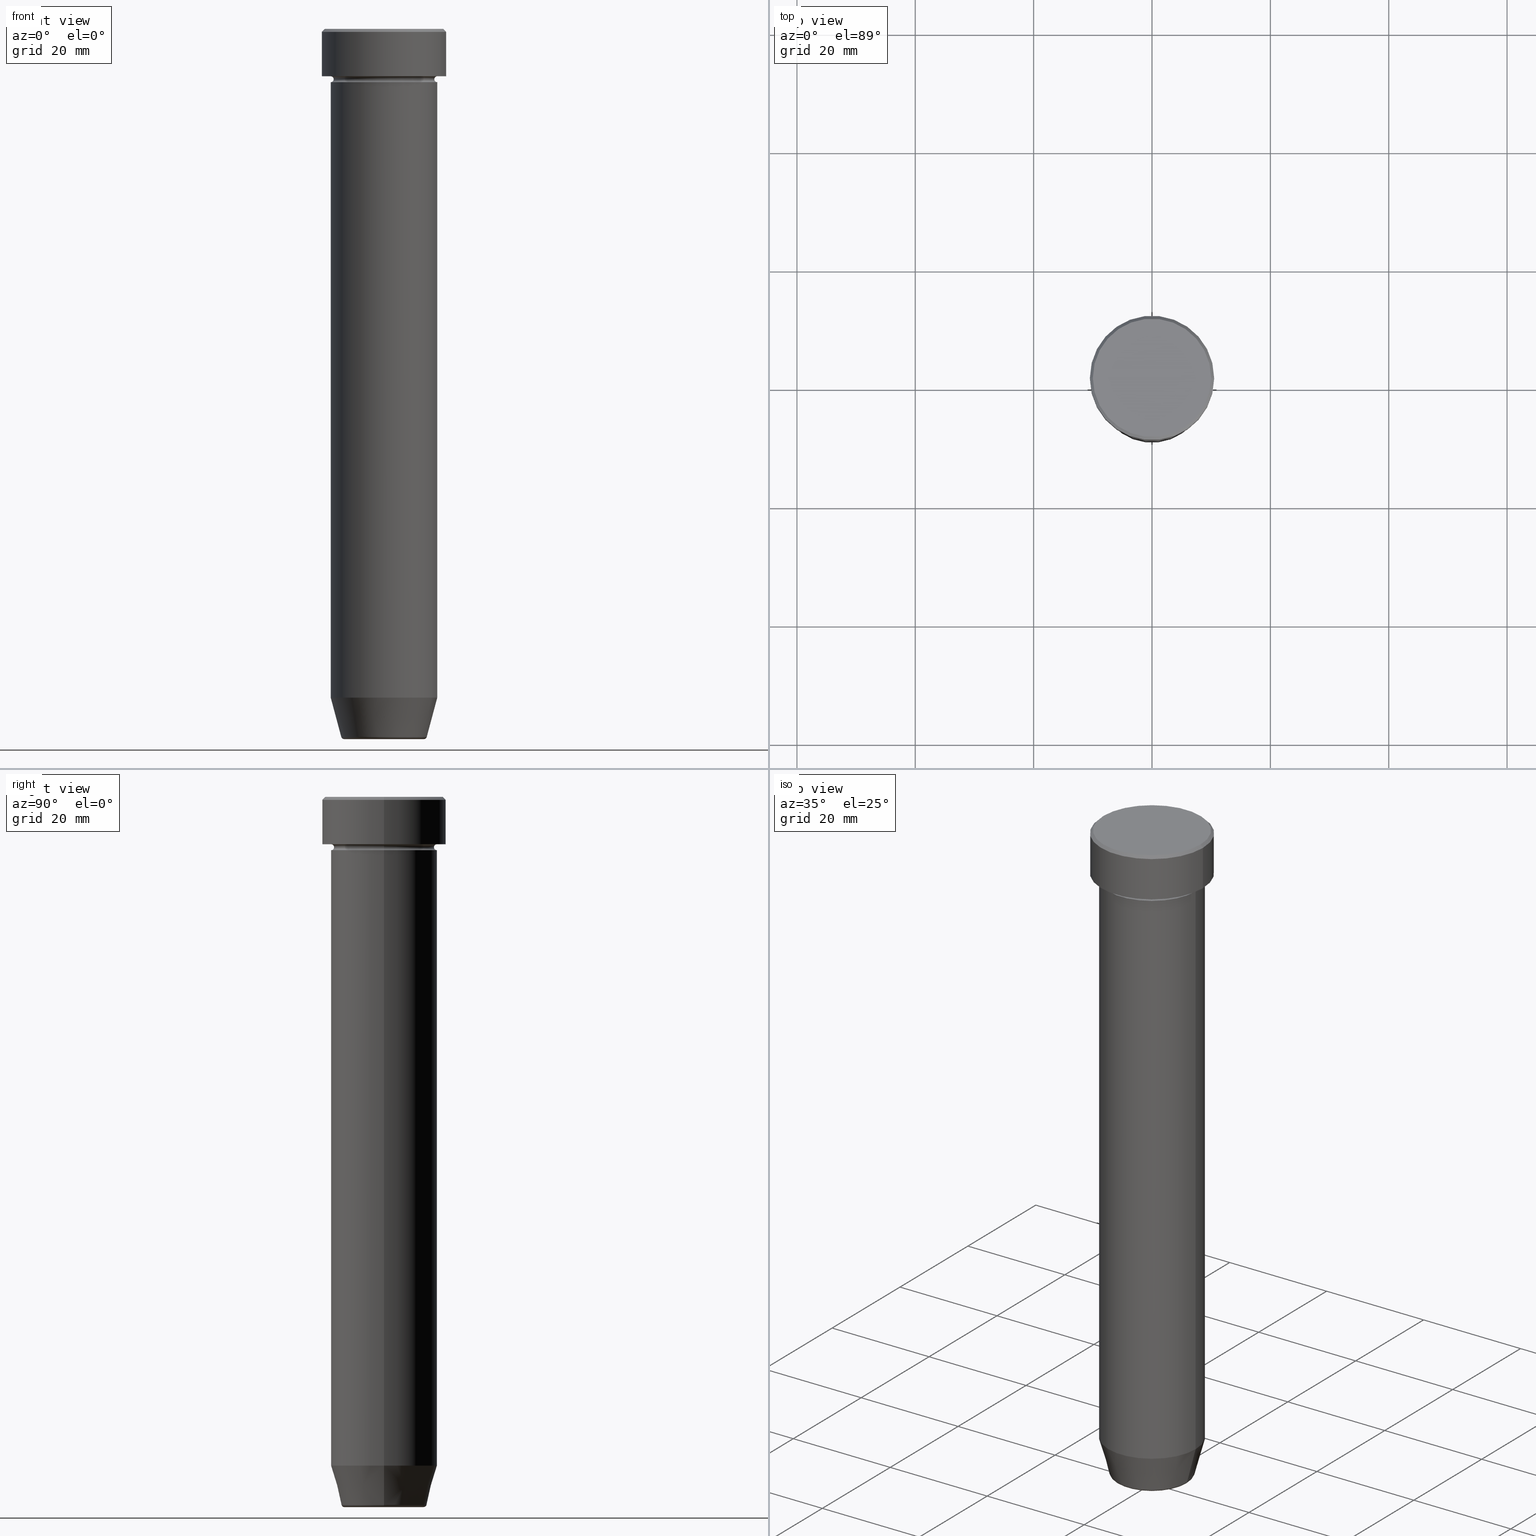
[diagram: canonical four-view strip — front | top / right | iso, engineering-drawing reading convention]
A machine part, canonical four-view strip (front | top / right | iso — engineering-drawing reading convention). The complete STEP part file that produces these views, byte-faithful:
ISO-10303-21;
HEADER;
FILE_DESCRIPTION (( 'STEP AP203' ),
    '1' );
FILE_NAME ('7e68.STEP',
    '2024-01-02T22:07:42',
    ( '' ),
    ( '' ),
    'SwSTEP 2.0',
    'SolidWorks 2019',
    '' );
FILE_SCHEMA (( 'CONFIG_CONTROL_DESIGN' ));
ENDSEC;

DATA;
#1 = CONICAL_SURFACE ( 'NONE', #540, 10.00000000000000178, 0.7853981633974447263 ) ;
#2 = CARTESIAN_POINT ( 'NONE',  ( -9.000000000000000000, 0.000000000000000000, -8.000000000000000000 ) ) ;
#3 = ADVANCED_BREP_SHAPE_REPRESENTATION ( '7e68', ( #64, #267, #308 ), #170 ) ;
#4 = EDGE_CURVE ( 'NONE', #443, #316, #352, .T. ) ;
#5 = EDGE_LOOP ( 'NONE', ( #189, #571, #19, #341 ) ) ;
#6 = DIRECTION ( 'NONE',  ( -0.000000000000000000, -0.000000000000000000, 1.000000000000000000 ) ) ;
#7 = VERTEX_POINT ( 'NONE', #73 ) ;
#8 = PRODUCT ( '7e68', '7e68', '', ( #129 ) ) ;
#9 = CARTESIAN_POINT ( 'NONE',  ( 0.000000000000000000, 0.000000000000000000, -8.500000000000000000 ) ) ;
#10 = CIRCLE ( 'NONE', #357, 9.000000000000000000 ) ;
#11 = EDGE_CURVE ( 'NONE', #596, #252, #169, .T. ) ;
#12 = ORGANIZATION ( 'NEUR�EN�', 'NEUR�EN�', '' ) ;
#13 = DIRECTION ( 'NONE',  ( 1.000000000000000000, 0.000000000000000000, 0.000000000000000000 ) ) ;
#14 = ORIENTED_EDGE ( 'NONE', *, *, #122, .T. ) ;
#15 = DIRECTION ( 'NONE',  ( 1.000000000000000000, 0.000000000000000000, 0.000000000000000000 ) ) ;
#16 = PLANE ( 'NONE',  #253 ) ;
#17 = APPROVAL_DATE_TIME ( #247, #404 ) ;
#18 = DIRECTION ( 'NONE',  ( 1.000000000000000000, 0.000000000000000000, 0.000000000000000000 ) ) ;
#19 = ORIENTED_EDGE ( 'NONE', *, *, #548, .T. ) ;
#20 = CIRCLE ( 'NONE', #99, 10.50000000000000000 ) ;
#21 = AXIS2_PLACEMENT_3D ( 'NONE', #202, #583, #525 ) ;
#22 = PLANE ( 'NONE',  #130 ) ;
#23 = ORIENTED_EDGE ( 'NONE', *, *, #492, .T. ) ;
#24 = ADVANCED_FACE ( 'NONE', ( #437 ), #344, .T. ) ;
#25 = CARTESIAN_POINT ( 'NONE',  ( 10.50000000000000000, 0.000000000000000000, 0.000000000000000000 ) ) ;
#26 = ORIENTED_EDGE ( 'NONE', *, *, #510, .F. ) ;
#27 = FACE_OUTER_BOUND ( 'NONE', #329, .T. ) ;
#28 = EDGE_LOOP ( 'NONE', ( #159, #103, #36, #398 ) ) ;
#29 = ADVANCED_FACE ( 'NONE', ( #584 ), #16, .F. ) ;
#30 = DATE_AND_TIME ( #591, #196 ) ;
#31 = AXIS2_PLACEMENT_3D ( 'NONE', #509, #87, #227 ) ;
#32 = CARTESIAN_POINT ( 'NONE',  ( 0.000000000000000000, 0.000000000000000000, -8.000000000000000000 ) ) ;
#33 = LOCAL_TIME ( 23, 7, 42.00000000000000000, #468 ) ;
#34 = FACE_OUTER_BOUND ( 'NONE', #537, .T. ) ;
#35 = CARTESIAN_POINT ( 'NONE',  ( -9.000000000000000000, 0.000000000000000000, -8.500000000000000000 ) ) ;
#36 = ORIENTED_EDGE ( 'NONE', *, *, #297, .T. ) ;
#37 = FACE_OUTER_BOUND ( 'NONE', #255, .T. ) ;
#38 = EDGE_CURVE ( 'NONE', #411, #476, #409, .T. ) ;
#39 = CARTESIAN_POINT ( 'NONE',  ( 0.000000000000000000, 10.50000000000000000, -8.000000000000000000 ) ) ;
#40 = CIRCLE ( 'NONE', #381, 10.00000000000000178 ) ;
#41 = AXIS2_PLACEMENT_3D ( 'NONE', #590, #461, #365 ) ;
#42 = CC_DESIGN_PERSON_AND_ORGANIZATION_ASSIGNMENT ( #109, #430, ( #485 ) ) ;
#43 = CARTESIAN_POINT ( 'NONE',  ( -10.00000000000000178, 0.000000000000000000, 0.000000000000000000 ) ) ;
#44 = VERTEX_POINT ( 'NONE', #349 ) ;
#45 = DIRECTION ( 'NONE',  ( 0.000000000000000000, 0.000000000000000000, -1.000000000000000000 ) ) ;
#46 = ORIENTED_EDGE ( 'NONE', *, *, #210, .F. ) ;
#47 = EDGE_CURVE ( 'NONE', #522, #480, #388, .T. ) ;
#48 = DIRECTION ( 'NONE',  ( -0.000000000000000000, -0.000000000000000000, 1.000000000000000000 ) ) ;
#49 = ORIENTED_EDGE ( 'NONE', *, *, #219, .F. ) ;
#50 = AXIS2_PLACEMENT_3D ( 'NONE', #65, #442, #243 ) ;
#51 = LOCAL_TIME ( 23, 7, 42.00000000000000000, #313 ) ;
#52 = DIRECTION ( 'NONE',  ( 0.2588190451025210725, 0.000000000000000000, 0.9659258262890680902 ) ) ;
#53 = ORIENTED_EDGE ( 'NONE', *, *, #287, .F. ) ;
#54 = CARTESIAN_POINT ( 'NONE',  ( 9.000000000000000000, 0.000000000000000000, 0.000000000000000000 ) ) ;
#55 = VERTEX_POINT ( 'NONE', #217 ) ;
#56 = ADVANCED_FACE ( 'NONE', ( #37 ), #377, .T. ) ;
#57 = CALENDAR_DATE ( 2024, 2, 1 ) ;
#58 = DIRECTION ( 'NONE',  ( 1.224646799147353207E-16, 1.000000000000000000, 0.000000000000000000 ) ) ;
#59 = ORIENTED_EDGE ( 'NONE', *, *, #86, .F. ) ;
#60 = CIRCLE ( 'NONE', #482, 9.000000000000000000 ) ;
#61 = AXIS2_PLACEMENT_3D ( 'NONE', #505, #131, #229 ) ;
#62 = FACE_OUTER_BOUND ( 'NONE', #515, .T. ) ;
#63 = CARTESIAN_POINT ( 'NONE',  ( 9.000000000000000000, 1.102182119232617714E-15, -8.500000000000000000 ) ) ;
#64 = MANIFOLD_SOLID_BREP ( 'Zkosen�1', #106 ) ;
#65 = CARTESIAN_POINT ( 'NONE',  ( 0.000000000000000000, 0.000000000000000000, -22.00000000000000000 ) ) ;
#66 = ORIENTED_EDGE ( 'NONE', *, *, #114, .F. ) ;
#67 = ADVANCED_FACE ( 'NONE', ( #500 ), #284, .T. ) ;
#68 = DIRECTION ( 'NONE',  ( -0.000000000000000000, -0.000000000000000000, 1.000000000000000000 ) ) ;
#69 = VERTEX_POINT ( 'NONE', #89 ) ;
#70 = CIRCLE ( 'NONE', #585, 10.50000000000000000 ) ;
#71 = CARTESIAN_POINT ( 'NONE',  ( 8.499999999999998224, 0.000000000000000000, -8.500000000000000000 ) ) ;
#72 = TOROIDAL_SURFACE ( 'NONE', #520, 9.000000000000000000, 0.5000000000000000000 ) ;
#73 = CARTESIAN_POINT ( 'NONE',  ( 9.000000000000000000, 0.000000000000000000, -22.00000000000000000 ) ) ;
#74 = CARTESIAN_POINT ( 'NONE',  ( 0.000000000000000000, 0.000000000000000000, 0.000000000000000000 ) ) ;
#75 = EDGE_LOOP ( 'NONE', ( #488, #296, #214, #416 ) ) ;
#76 = ADVANCED_FACE ( 'NONE', ( #224 ), #262, .T. ) ;
#77 = APPROVAL_STATUS ( 'not_yet_approved' ) ;
#78 = DIRECTION ( 'NONE',  ( 0.000000000000000000, 0.000000000000000000, -1.000000000000000000 ) ) ;
#79 = DIRECTION ( 'NONE',  ( 1.000000000000000000, 0.000000000000000000, 0.000000000000000000 ) ) ;
#80 = AXIS2_PLACEMENT_3D ( 'NONE', #558, #58, #281 ) ;
#81 = DIRECTION ( 'NONE',  ( -1.000000000000000000, 0.000000000000000000, 0.000000000000000000 ) ) ;
#82 = EDGE_LOOP ( 'NONE', ( #502, #119, #14, #456 ) ) ;
#83 = CARTESIAN_POINT ( 'NONE',  ( 0.000000000000000000, 0.000000000000000000, -8.000000000000000000 ) ) ;
#84 = DIRECTION ( 'NONE',  ( 1.000000000000000000, 0.000000000000000000, 0.000000000000000000 ) ) ;
#85 = CARTESIAN_POINT ( 'NONE',  ( -7.223655072137189492, 9.934123627281763137E-16, -119.6294095225512706 ) ) ;
#86 = EDGE_CURVE ( 'NONE', #379, #205, #354, .T. ) ;
#87 = DIRECTION ( 'NONE',  ( -0.000000000000000000, -0.000000000000000000, 1.000000000000000000 ) ) ;
#88 = COORDINATED_UNIVERSAL_TIME_OFFSET ( 1, 0, .AHEAD. ) ;
#89 = CARTESIAN_POINT ( 'NONE',  ( -9.000000000000000000, 1.102182119232617714E-15, -22.00000000000000000 ) ) ;
#90 = VECTOR ( 'NONE', #52, 1000.000000000000114 ) ;
#91 = AXIS2_PLACEMENT_3D ( 'NONE', #270, #172, #225 ) ;
#92 = APPROVAL_STATUS ( 'not_yet_approved' ) ;
#93 = DIRECTION ( 'NONE',  ( -0.000000000000000000, -0.000000000000000000, 1.000000000000000000 ) ) ;
#94 = ORIENTED_EDGE ( 'NONE', *, *, #448, .T. ) ;
#95 = EDGE_CURVE ( 'NONE', #244, #7, #60, .T. ) ;
#96 = DIRECTION ( 'NONE',  ( -0.000000000000000000, -0.000000000000000000, 1.000000000000000000 ) ) ;
#97 = CARTESIAN_POINT ( 'NONE',  ( 0.000000000000000000, 0.000000000000000000, -112.9999999999999858 ) ) ;
#98 = EDGE_LOOP ( 'NONE', ( #23, #564, #534, #153 ) ) ;
#99 = AXIS2_PLACEMENT_3D ( 'NONE', #128, #544, #498 ) ;
#100 = VECTOR ( 'NONE', #102, 1000.000000000000000 ) ;
#101 = EDGE_CURVE ( 'NONE', #443, #386, #288, .T. ) ;
#102 = DIRECTION ( 'NONE',  ( 0.7071067811865450192, 8.659560562354902043E-17, -0.7071067811865500152 ) ) ;
#103 = ORIENTED_EDGE ( 'NONE', *, *, #519, .T. ) ;
#104 = CARTESIAN_POINT ( 'NONE',  ( 0.000000000000000000, 0.000000000000000000, -8.000000000000000000 ) ) ;
#105 = ORIENTED_EDGE ( 'NONE', *, *, #350, .T. ) ;
#106 = CLOSED_SHELL ( 'NONE', ( #56, #582, #555, #467, #426, #24, #535, #76, #192, #134, #167, #588, #358 ) ) ;
#107 = FACE_OUTER_BOUND ( 'NONE', #345, .T. ) ;
#108 = VERTEX_POINT ( 'NONE', #43 ) ;
#109 = PERSON_AND_ORGANIZATION ( #530, #12 ) ;
#110 = AXIS2_PLACEMENT_3D ( 'NONE', #303, #258, #309 ) ;
#111 = APPROVAL_PERSON_ORGANIZATION ( #154, #404, #277 ) ;
#112 = DIRECTION ( 'NONE',  ( -0.000000000000000000, -0.000000000000000000, 1.000000000000000000 ) ) ;
#113 = ORIENTED_EDGE ( 'NONE', *, *, #412, .T. ) ;
#114 = EDGE_CURVE ( 'NONE', #44, #480, #139, .T. ) ;
#115 = DIRECTION ( 'NONE',  ( -0.000000000000000000, -0.000000000000000000, 1.000000000000000000 ) ) ;
#116 = EDGE_LOOP ( 'NONE', ( #282, #294 ) ) ;
#117 = AXIS2_PLACEMENT_3D ( 'NONE', #359, #321, #466 ) ;
#118 = CARTESIAN_POINT ( 'NONE',  ( -10.50000000000000000, 1.285879139104720831E-15, -0.5000000000000023315 ) ) ;
#119 = ORIENTED_EDGE ( 'NONE', *, *, #114, .T. ) ;
#120 = CIRCLE ( 'NONE', #593, 9.000000000000000000 ) ;
#121 = DIRECTION ( 'NONE',  ( -0.000000000000000000, -0.000000000000000000, 1.000000000000000000 ) ) ;
#122 = EDGE_CURVE ( 'NONE', #480, #522, #20, .T. ) ;
#123 = ORIENTED_EDGE ( 'NONE', *, *, #312, .T. ) ;
#124 = APPLICATION_PROTOCOL_DEFINITION ( 'international standard', 'config_control_design', 1994, #145 ) ;
#125 = DIRECTION ( 'NONE',  ( -0.000000000000000000, -0.000000000000000000, 1.000000000000000000 ) ) ;
#126 = AXIS2_PLACEMENT_3D ( 'NONE', #271, #556, #278 ) ;
#127 = DIRECTION ( 'NONE',  ( -0.000000000000000000, -0.000000000000000000, 1.000000000000000000 ) ) ;
#128 = CARTESIAN_POINT ( 'NONE',  ( 0.000000000000000000, 0.000000000000000000, -0.5000000000000023315 ) ) ;
#129 = MECHANICAL_CONTEXT ( 'NONE', #391, 'mechanical' ) ;
#130 = AXIS2_PLACEMENT_3D ( 'NONE', #533, #208, #298 ) ;
#131 = DIRECTION ( 'NONE',  ( -0.000000000000000000, -0.000000000000000000, 1.000000000000000000 ) ) ;
#132 = AXIS2_PLACEMENT_3D ( 'NONE', #364, #322, #218 ) ;
#133 = ORIENTED_EDGE ( 'NONE', *, *, #305, .F. ) ;
#134 = ADVANCED_FACE ( 'NONE', ( #274 ), #586, .T. ) ;
#135 = DIRECTION ( 'NONE',  ( 1.000000000000000000, 0.000000000000000000, 0.000000000000000000 ) ) ;
#136 = DIRECTION ( 'NONE',  ( 0.000000000000000000, 0.000000000000000000, -1.000000000000000000 ) ) ;
#137 = EDGE_LOOP ( 'NONE', ( #123, #574 ) ) ;
#138 = FACE_OUTER_BOUND ( 'NONE', #478, .T. ) ;
#139 = LINE ( 'NONE', #589, #206 ) ;
#140 = DIRECTION ( 'NONE',  ( -0.000000000000000000, -0.000000000000000000, 1.000000000000000000 ) ) ;
#141 = AXIS2_PLACEMENT_3D ( 'NONE', #351, #112, #539 ) ;
#142 = EDGE_CURVE ( 'NONE', #252, #244, #455, .T. ) ;
#143 = PERSON_AND_ORGANIZATION ( #530, #12 ) ;
#144 = LINE ( 'NONE', #330, #346 ) ;
#145 = APPLICATION_CONTEXT ( 'configuration controlled 3d designs of mechanical parts and assemblies' ) ;
#146 = CARTESIAN_POINT ( 'NONE',  ( 0.000000000000000000, 0.000000000000000000, -9.000000000000001776 ) ) ;
#147 = EDGE_LOOP ( 'NONE', ( #599, #94, #212, #26 ) ) ;
#148 = EDGE_CURVE ( 'NONE', #279, #386, #452, .T. ) ;
#149 = DIRECTION ( 'NONE',  ( -0.000000000000000000, -0.000000000000000000, 1.000000000000000000 ) ) ;
#150 = EDGE_LOOP ( 'NONE', ( #307, #353 ) ) ;
#151 = CIRCLE ( 'NONE', #195, 8.499999999999998224 ) ;
#152 = CARTESIAN_POINT ( 'NONE',  ( 0.000000000000000000, 0.000000000000000000, -8.500000000000000000 ) ) ;
#153 = ORIENTED_EDGE ( 'NONE', *, *, #393, .F. ) ;
#154 = PERSON_AND_ORGANIZATION ( #530, #12 ) ;
#155 = FACE_OUTER_BOUND ( 'NONE', #374, .T. ) ;
#156 = DIRECTION ( 'NONE',  ( 1.000000000000000000, 0.000000000000000000, 0.000000000000000000 ) ) ;
#157 = VECTOR ( 'NONE', #250, 1000.000000000000114 ) ;
#158 = DIRECTION ( 'NONE',  ( -0.7071067811865450192, 0.000000000000000000, -0.7071067811865500152 ) ) ;
#159 = ORIENTED_EDGE ( 'NONE', *, *, #323, .F. ) ;
#160 = APPROVAL ( #77, 'NEUR�EN�' ) ;
#161 = APPROVAL_DATE_TIME ( #465, #429 ) ;
#162 = AXIS2_PLACEMENT_3D ( 'NONE', #39, #78, #415 ) ;
#163 = DIRECTION ( 'NONE',  ( -1.000000000000000000, 0.000000000000000000, 0.000000000000000000 ) ) ;
#164 = DIRECTION ( 'NONE',  ( 1.000000000000000000, 0.000000000000000000, 0.000000000000000000 ) ) ;
#165 = CYLINDRICAL_SURFACE ( 'NONE', #141, 9.000000000000000000 ) ;
#166 = ORIENTED_EDGE ( 'NONE', *, *, #11, .T. ) ;
#167 = ADVANCED_FACE ( 'NONE', ( #362 ), #549, .F. ) ;
#168 = CARTESIAN_POINT ( 'NONE',  ( 0.000000000000000000, 0.000000000000000000, -119.6294095225512706 ) ) ;
#169 = LINE ( 'NONE', #579, #157 ) ;
#170 =( GEOMETRIC_REPRESENTATION_CONTEXT ( 3 ) GLOBAL_UNCERTAINTY_ASSIGNED_CONTEXT ( ( #546 ) ) GLOBAL_UNIT_ASSIGNED_CONTEXT ( ( #273, #543, #367 ) ) REPRESENTATION_CONTEXT ( 'NONE', 'WORKASPACE' ) );
#171 = DIRECTION ( 'NONE',  ( -0.000000000000000000, -0.000000000000000000, 1.000000000000000000 ) ) ;
#172 = DIRECTION ( 'NONE',  ( 0.000000000000000000, 0.000000000000000000, -1.000000000000000000 ) ) ;
#173 = DIRECTION ( 'NONE',  ( 0.000000000000000000, 0.000000000000000000, -1.000000000000000000 ) ) ;
#174 = DIRECTION ( 'NONE',  ( -0.000000000000000000, -0.000000000000000000, 1.000000000000000000 ) ) ;
#175 = EDGE_CURVE ( 'NONE', #286, #44, #234, .T. ) ;
#176 = VECTOR ( 'NONE', #174, 1000.000000000000000 ) ;
#177 = DIRECTION ( 'NONE',  ( -0.000000000000000000, -0.000000000000000000, 1.000000000000000000 ) ) ;
#178 = CIRCLE ( 'NONE', #518, 8.499999999999998224 ) ;
#179 = CARTESIAN_POINT ( 'NONE',  ( 9.000000000000000000, 0.000000000000000000, -8.500000000000000000 ) ) ;
#180 = FACE_BOUND ( 'NONE', #462, .T. ) ;
#181 = EDGE_CURVE ( 'NONE', #428, #108, #363, .T. ) ;
#182 = AXIS2_PLACEMENT_3D ( 'NONE', #541, #203, #164 ) ;
#183 = CARTESIAN_POINT ( 'NONE',  ( 0.000000000000000000, 0.000000000000000000, -120.0000000000000000 ) ) ;
#184 = PERSON_AND_ORGANIZATION_ROLE ( 'design_supplier' ) ;
#185 = LINE ( 'NONE', #475, #90 ) ;
#186 = AXIS2_PLACEMENT_3D ( 'NONE', #378, #48, #382 ) ;
#187 = ORIENTED_EDGE ( 'NONE', *, *, #339, .F. ) ;
#188 = DIRECTION ( 'NONE',  ( 1.000000000000000000, 0.000000000000000000, 0.000000000000000000 ) ) ;
#189 = ORIENTED_EDGE ( 'NONE', *, *, #201, .F. ) ;
#190 = CARTESIAN_POINT ( 'NONE',  ( 10.50000000000000000, 0.000000000000000000, -8.000000000000000000 ) ) ;
#191 = ORIENTED_EDGE ( 'NONE', *, *, #210, .T. ) ;
#192 = ADVANCED_FACE ( 'NONE', ( #180, #507 ), #311, .T. ) ;
#193 = CARTESIAN_POINT ( 'NONE',  ( 0.000000000000000000, 0.000000000000000000, 0.000000000000000000 ) ) ;
#194 = ORIENTED_EDGE ( 'NONE', *, *, #492, .F. ) ;
#195 = AXIS2_PLACEMENT_3D ( 'NONE', #9, #237, #561 ) ;
#196 = LOCAL_TIME ( 23, 7, 42.00000000000000000, #450 ) ;
#197 = PERSON_AND_ORGANIZATION ( #530, #12 ) ;
#198 = DIRECTION ( 'NONE',  ( 1.000000000000000000, 0.000000000000000000, 0.000000000000000000 ) ) ;
#199 = ORIENTED_EDGE ( 'NONE', *, *, #248, .F. ) ;
#200 = DATE_TIME_ROLE ( 'creation_date' ) ;
#201 = EDGE_CURVE ( 'NONE', #428, #522, #368, .T. ) ;
#202 = CARTESIAN_POINT ( 'NONE',  ( -6.740692158992655614, 8.254967076548017297E-16, -119.5000000000000000 ) ) ;
#203 = DIRECTION ( 'NONE',  ( 0.000000000000000000, 0.000000000000000000, -1.000000000000000000 ) ) ;
#204 = DIRECTION ( 'NONE',  ( -1.000000000000000000, 0.000000000000000000, -0.000000000000000000 ) ) ;
#205 = VERTEX_POINT ( 'NONE', #2 ) ;
#206 = VECTOR ( 'NONE', #324, 1000.000000000000000 ) ;
#207 = AXIS2_PLACEMENT_3D ( 'NONE', #254, #495, #204 ) ;
#208 = DIRECTION ( 'NONE',  ( 0.000000000000000000, -0.000000000000000000, 1.000000000000000000 ) ) ;
#209 = DIRECTION ( 'NONE',  ( -1.224646799147353207E-16, 1.000000000000000000, 0.000000000000000000 ) ) ;
#210 = EDGE_CURVE ( 'NONE', #205, #316, #444, .T. ) ;
#211 = FACE_OUTER_BOUND ( 'NONE', #434, .T. ) ;
#212 = ORIENTED_EDGE ( 'NONE', *, *, #228, .F. ) ;
#213 = DIRECTION ( 'NONE',  ( -1.000000000000000000, 0.000000000000000000, 0.000000000000000000 ) ) ;
#214 = ORIENTED_EDGE ( 'NONE', *, *, #86, .T. ) ;
#215 = TOROIDAL_SURFACE ( 'NONE', #577, 6.740692158992655614, 0.5000000000000000000 ) ;
#216 = APPROVAL_DATE_TIME ( #30, #160 ) ;
#217 = CARTESIAN_POINT ( 'NONE',  ( 9.000000000000000000, 0.000000000000000000, -22.00000000000000000 ) ) ;
#218 = DIRECTION ( 'NONE',  ( -1.000000000000000000, 0.000000000000000000, 0.000000000000000000 ) ) ;
#219 = EDGE_CURVE ( 'NONE', #386, #279, #120, .T. ) ;
#220 = DIRECTION ( 'NONE',  ( -0.000000000000000000, -1.000000000000000000, -0.000000000000000000 ) ) ;
#221 = ORIENTED_EDGE ( 'NONE', *, *, #458, .T. ) ;
#222 = AXIS2_PLACEMENT_3D ( 'NONE', #459, #136, #81 ) ;
#223 = PERSON_AND_ORGANIZATION ( #530, #12 ) ;
#224 = FACE_OUTER_BOUND ( 'NONE', #260, .T. ) ;
#225 = DIRECTION ( 'NONE',  ( -1.000000000000000000, 0.000000000000000000, 0.000000000000000000 ) ) ;
#226 = VECTOR ( 'NONE', #93, 1000.000000000000000 ) ;
#227 = DIRECTION ( 'NONE',  ( 1.000000000000000000, 0.000000000000000000, 0.000000000000000000 ) ) ;
#228 = EDGE_CURVE ( 'NONE', #310, #596, #413, .T. ) ;
#229 = DIRECTION ( 'NONE',  ( 1.000000000000000000, 0.000000000000000000, 0.000000000000000000 ) ) ;
#230 = EDGE_LOOP ( 'NONE', ( #441, #376, #49, #236 ) ) ;
#231 = DIRECTION ( 'NONE',  ( -1.000000000000000000, 0.000000000000000000, 0.000000000000000000 ) ) ;
#232 = ORIENTED_EDGE ( 'NONE', *, *, #175, .F. ) ;
#233 = PLANE ( 'NONE',  #207 ) ;
#234 = CIRCLE ( 'NONE', #245, 10.50000000000000000 ) ;
#235 = AXIS2_PLACEMENT_3D ( 'NONE', #506, #551, #135 ) ;
#236 = ORIENTED_EDGE ( 'NONE', *, *, #297, .F. ) ;
#237 = DIRECTION ( 'NONE',  ( -0.000000000000000000, -0.000000000000000000, 1.000000000000000000 ) ) ;
#238 = EDGE_CURVE ( 'NONE', #443, #379, #178, .T. ) ;
#239 = ORIENTED_EDGE ( 'NONE', *, *, #219, .T. ) ;
#240 = DIRECTION ( 'NONE',  ( 1.000000000000000000, 0.000000000000000000, 0.000000000000000000 ) ) ;
#241 = ORIENTED_EDGE ( 'NONE', *, *, #305, .T. ) ;
#242 = CC_DESIGN_PERSON_AND_ORGANIZATION_ASSIGNMENT ( #197, #508, ( #347 ) ) ;
#243 = DIRECTION ( 'NONE',  ( 1.000000000000000000, 0.000000000000000000, 0.000000000000000000 ) ) ;
#244 = VERTEX_POINT ( 'NONE', #293 ) ;
#245 = AXIS2_PLACEMENT_3D ( 'NONE', #32, #125, #84 ) ;
#246 = CIRCLE ( 'NONE', #542, 9.000000000000000000 ) ;
#247 = DATE_AND_TIME ( #57, #403 ) ;
#248 = EDGE_CURVE ( 'NONE', #379, #279, #336, .T. ) ;
#249 = CARTESIAN_POINT ( 'NONE',  ( 0.000000000000000000, 0.000000000000000000, 0.000000000000000000 ) ) ;
#250 = DIRECTION ( 'NONE',  ( -0.2588190451025210725, 3.169619151431769255E-17, 0.9659258262890680902 ) ) ;
#251 = CARTESIAN_POINT ( 'NONE',  ( 10.50000000000000000, 0.000000000000000000, -0.5000000000000023315 ) ) ;
#252 = VERTEX_POINT ( 'NONE', #417 ) ;
#253 = AXIS2_PLACEMENT_3D ( 'NONE', #576, #356, #156 ) ;
#254 = CARTESIAN_POINT ( 'NONE',  ( 0.000000000000000000, 0.000000000000000000, -22.00000000000000000 ) ) ;
#255 = EDGE_LOOP ( 'NONE', ( #396, #524, #334, #338 ) ) ;
#256 = AXIS2_PLACEMENT_3D ( 'NONE', #168, #390, #163 ) ;
#257 = AXIS2_PLACEMENT_3D ( 'NONE', #457, #554, #266 ) ;
#258 = DIRECTION ( 'NONE',  ( -0.000000000000000000, -0.000000000000000000, 1.000000000000000000 ) ) ;
#259 = CARTESIAN_POINT ( 'NONE',  ( 0.000000000000000000, 9.000000000000000000, -22.00000000000000000 ) ) ;
#260 = EDGE_LOOP ( 'NONE', ( #66, #496, #470, #302 ) ) ;
#261 = APPROVAL_ROLE ( '' ) ;
#262 = CYLINDRICAL_SURFACE ( 'NONE', #460, 10.50000000000000000 ) ;
#263 = AXIS2_PLACEMENT_3D ( 'NONE', #514, #140, #240 ) ;
#264 = PRODUCT_DEFINITION ( 'NEZN�M�', '', #347, #315 ) ;
#265 = APPROVAL_PERSON_ORGANIZATION ( #280, #429, #557 ) ;
#266 = DIRECTION ( 'NONE',  ( 1.000000000000000000, 0.000000000000000000, 0.000000000000000000 ) ) ;
#267 = MANIFOLD_SOLID_BREP ( 'Zaoblit4', #272 ) ;
#268 = DIRECTION ( 'NONE',  ( 1.000000000000000000, 0.000000000000000000, 0.000000000000000000 ) ) ;
#269 = ORIENTED_EDGE ( 'NONE', *, *, #350, .F. ) ;
#270 = CARTESIAN_POINT ( 'NONE',  ( 0.000000000000000000, 0.000000000000000000, -8.500000000000000000 ) ) ;
#271 = CARTESIAN_POINT ( 'NONE',  ( 0.000000000000000000, 0.000000000000000000, -0.5000000000000023315 ) ) ;
#272 = CLOSED_SHELL ( 'NONE', ( #67, #527, #275, #400, #594, #565, #29, #503 ) ) ;
#273 =( LENGTH_UNIT ( ) NAMED_UNIT ( * ) SI_UNIT ( .MILLI., .METRE. ) );
#274 = FACE_OUTER_BOUND ( 'NONE', #28, .T. ) ;
#275 = ADVANCED_FACE ( 'NONE', ( #472 ), #375, .T. ) ;
#276 = CIRCLE ( 'NONE', #371, 6.740692158992655614 ) ;
#277 = APPROVAL_ROLE ( '' ) ;
#278 = DIRECTION ( 'NONE',  ( 1.000000000000000000, 0.000000000000000000, 0.000000000000000000 ) ) ;
#279 = VERTEX_POINT ( 'NONE', #333 ) ;
#280 = PERSON_AND_ORGANIZATION ( #530, #12 ) ;
#281 = DIRECTION ( 'NONE',  ( -1.000000000000000000, 1.224646799147353454E-16, 0.000000000000000000 ) ) ;
#282 = ORIENTED_EDGE ( 'NONE', *, *, #38, .T. ) ;
#283 = AXIS2_PLACEMENT_3D ( 'NONE', #63, #209, #581 ) ;
#284 = TOROIDAL_SURFACE ( 'NONE', #117, 6.740692158992655614, 0.5000000000000000000 ) ;
#285 = FACE_OUTER_BOUND ( 'NONE', #137, .T. ) ;
#286 = VERTEX_POINT ( 'NONE', #190 ) ;
#287 = EDGE_CURVE ( 'NONE', #44, #286, #70, .T. ) ;
#288 = CIRCLE ( 'NONE', #317, 0.5000000000000004441 ) ;
#289 = FACE_OUTER_BOUND ( 'NONE', #5, .T. ) ;
#290 = CIRCLE ( 'NONE', #21, 0.5000000000000004441 ) ;
#291 = ORIENTED_EDGE ( 'NONE', *, *, #101, .T. ) ;
#292 = PRODUCT_RELATED_PRODUCT_CATEGORY ( 'detail', '', ( #8 ) ) ;
#293 = CARTESIAN_POINT ( 'NONE',  ( -9.000000000000000000, 1.102182119232617714E-15, -22.00000000000000000 ) ) ;
#294 = ORIENTED_EDGE ( 'NONE', *, *, #380, .T. ) ;
#295 = DIRECTION ( 'NONE',  ( -0.000000000000000000, -0.000000000000000000, 1.000000000000000000 ) ) ;
#296 = ORIENTED_EDGE ( 'NONE', *, *, #238, .T. ) ;
#297 = EDGE_CURVE ( 'NONE', #55, #386, #477, .T. ) ;
#298 = DIRECTION ( 'NONE',  ( 1.000000000000000000, 0.000000000000000000, 0.000000000000000000 ) ) ;
#299 = ORIENTED_EDGE ( 'NONE', *, *, #228, .T. ) ;
#300 = AXIS2_PLACEMENT_3D ( 'NONE', #385, #573, #343 ) ;
#301 = CARTESIAN_POINT ( 'NONE',  ( 10.00000000000000178, 1.255262969126037241E-15, 0.000000000000000000 ) ) ;
#302 = ORIENTED_EDGE ( 'NONE', *, *, #47, .T. ) ;
#303 = CARTESIAN_POINT ( 'NONE',  ( 0.000000000000000000, 0.000000000000000000, -112.9999999999999858 ) ) ;
#304 = ORIENTED_EDGE ( 'NONE', *, *, #339, .T. ) ;
#305 = EDGE_CURVE ( 'NONE', #310, #562, #185, .T. ) ;
#306 = CARTESIAN_POINT ( 'NONE',  ( -10.00000000000000178, 0.000000000000000000, 0.000000000000000000 ) ) ;
#307 = ORIENTED_EDGE ( 'NONE', *, *, #418, .F. ) ;
#308 = AXIS2_PLACEMENT_3D ( 'NONE', #74, #320, #414 ) ;
#309 = DIRECTION ( 'NONE',  ( 1.000000000000000000, 0.000000000000000000, 0.000000000000000000 ) ) ;
#310 = VERTEX_POINT ( 'NONE', #328 ) ;
#311 = PLANE ( 'NONE',  #162 ) ;
#312 = EDGE_CURVE ( 'NONE', #7, #244, #463, .T. ) ;
#313 = COORDINATED_UNIVERSAL_TIME_OFFSET ( 1, 0, .AHEAD. ) ;
#314 = DIRECTION ( 'NONE',  ( -0.000000000000000000, -0.000000000000000000, 1.000000000000000000 ) ) ;
#315 = DESIGN_CONTEXT ( 'detailed design', #145, 'design' ) ;
#316 = VERTEX_POINT ( 'NONE', #427 ) ;
#317 = AXIS2_PLACEMENT_3D ( 'NONE', #179, #595, #545 ) ;
#318 = CIRCLE ( 'NONE', #50, 9.000000000000000000 ) ;
#319 = APPROVAL_PERSON_ORGANIZATION ( #497, #160, #261 ) ;
#320 = DIRECTION ( 'NONE',  ( 0.000000000000000000, 0.000000000000000000, 1.000000000000000000 ) ) ;
#321 = DIRECTION ( 'NONE',  ( -0.000000000000000000, -0.000000000000000000, 1.000000000000000000 ) ) ;
#322 = DIRECTION ( 'NONE',  ( 0.000000000000000000, 0.000000000000000000, -1.000000000000000000 ) ) ;
#323 = EDGE_CURVE ( 'NONE', #69, #279, #598, .T. ) ;
#324 = DIRECTION ( 'NONE',  ( -0.000000000000000000, -0.000000000000000000, 1.000000000000000000 ) ) ;
#325 = CARTESIAN_POINT ( 'NONE',  ( 0.000000000000000000, 0.000000000000000000, 0.000000000000000000 ) ) ;
#326 = CALENDAR_DATE ( 2024, 2, 1 ) ;
#327 = CONICAL_SURFACE ( 'NONE', #257, 7.124355652982136355, 0.2617993877991497964 ) ;
#328 = CARTESIAN_POINT ( 'NONE',  ( 7.223655072137189492, 0.000000000000000000, -119.6294095225512706 ) ) ;
#329 = EDGE_LOOP ( 'NONE', ( #105, #331, #46, #59 ) ) ;
#330 = CARTESIAN_POINT ( 'NONE',  ( 9.000000000000000000, 0.000000000000000000, 0.000000000000000000 ) ) ;
#331 = ORIENTED_EDGE ( 'NONE', *, *, #4, .T. ) ;
#332 = CC_DESIGN_DATE_AND_TIME_ASSIGNMENT ( #499, #200, ( #264 ) ) ;
#333 = CARTESIAN_POINT ( 'NONE',  ( -9.000000000000000000, 1.102182119232617714E-15, -9.000000000000001776 ) ) ;
#334 = ORIENTED_EDGE ( 'NONE', *, *, #122, .F. ) ;
#335 = DIRECTION ( 'NONE',  ( -0.000000000000000000, -0.000000000000000000, 1.000000000000000000 ) ) ;
#336 = CIRCLE ( 'NONE', #80, 0.5000000000000004441 ) ;
#337 = VECTOR ( 'NONE', #158, 1000.000000000000000 ) ;
#338 = ORIENTED_EDGE ( 'NONE', *, *, #548, .F. ) ;
#339 = EDGE_CURVE ( 'NONE', #252, #562, #383, .T. ) ;
#340 = DIRECTION ( 'NONE',  ( 0.000000000000000000, 0.000000000000000000, -1.000000000000000000 ) ) ;
#341 = ORIENTED_EDGE ( 'NONE', *, *, #47, .F. ) ;
#342 = DATE_AND_TIME ( #326, #422 ) ;
#343 = DIRECTION ( 'NONE',  ( 0.000000000000000000, 0.000000000000000000, -1.000000000000000000 ) ) ;
#344 = PLANE ( 'NONE',  #438 ) ;
#345 = EDGE_LOOP ( 'NONE', ( #113, #547 ) ) ;
#346 = VECTOR ( 'NONE', #96, 1000.000000000000000 ) ;
#347 = PRODUCT_DEFINITION_FORMATION_WITH_SPECIFIED_SOURCE ( 'LIBOVOLN�', '', #8, .NOT_KNOWN. ) ;
#348 = DIRECTION ( 'NONE',  ( -0.000000000000000000, -0.000000000000000000, 1.000000000000000000 ) ) ;
#349 = CARTESIAN_POINT ( 'NONE',  ( -10.50000000000000000, 1.285879139104720831E-15, -8.000000000000000000 ) ) ;
#350 = EDGE_CURVE ( 'NONE', #379, #443, #151, .T. ) ;
#351 = CARTESIAN_POINT ( 'NONE',  ( 0.000000000000000000, 0.000000000000000000, 0.000000000000000000 ) ) ;
#352 = CIRCLE ( 'NONE', #283, 0.5000000000000004441 ) ;
#353 = ORIENTED_EDGE ( 'NONE', *, *, #519, .F. ) ;
#354 = CIRCLE ( 'NONE', #399, 0.5000000000000004441 ) ;
#355 = FACE_OUTER_BOUND ( 'NONE', #230, .T. ) ;
#356 = DIRECTION ( 'NONE',  ( 0.000000000000000000, -0.000000000000000000, 1.000000000000000000 ) ) ;
#357 = AXIS2_PLACEMENT_3D ( 'NONE', #578, #121, #18 ) ;
#358 = ADVANCED_FACE ( 'NONE', ( #289 ), #1, .T. ) ;
#359 = CARTESIAN_POINT ( 'NONE',  ( 0.000000000000000000, 0.000000000000000000, -119.5000000000000000 ) ) ;
#360 = CALENDAR_DATE ( 2024, 2, 1 ) ;
#361 = FACE_OUTER_BOUND ( 'NONE', #75, .T. ) ;
#362 = FACE_OUTER_BOUND ( 'NONE', #553, .T. ) ;
#363 = CIRCLE ( 'NONE', #31, 10.00000000000000178 ) ;
#364 = CARTESIAN_POINT ( 'NONE',  ( 0.000000000000000000, 0.000000000000000000, -8.500000000000000000 ) ) ;
#365 = DIRECTION ( 'NONE',  ( 1.000000000000000000, 0.000000000000000000, 0.000000000000000000 ) ) ;
#366 = CC_DESIGN_DATE_AND_TIME_ASSIGNMENT ( #342, #513, ( #485 ) ) ;
#367 =( NAMED_UNIT ( * ) SI_UNIT ( $, .STERADIAN. ) SOLID_ANGLE_UNIT ( ) );
#368 = LINE ( 'NONE', #479, #100 ) ;
#369 = COORDINATED_UNIVERSAL_TIME_OFFSET ( 1, 0, .AHEAD. ) ;
#370 = DIRECTION ( 'NONE',  ( -0.000000000000000000, -0.000000000000000000, 1.000000000000000000 ) ) ;
#371 = AXIS2_PLACEMENT_3D ( 'NONE', #183, #340, #523 ) ;
#372 = DIRECTION ( 'NONE',  ( 1.000000000000000000, 0.000000000000000000, 0.000000000000000000 ) ) ;
#373 = CC_DESIGN_PERSON_AND_ORGANIZATION_ASSIGNMENT ( #223, #504, ( #8 ) ) ;
#374 = EDGE_LOOP ( 'NONE', ( #424, #490, #493, #408 ) ) ;
#375 = CYLINDRICAL_SURFACE ( 'NONE', #568, 9.000000000000000000 ) ;
#376 = ORIENTED_EDGE ( 'NONE', *, *, #323, .T. ) ;
#377 = CONICAL_SURFACE ( 'NONE', #222, 10.00000000000000178, 0.7853981633974447263 ) ;
#378 = CARTESIAN_POINT ( 'NONE',  ( 0.000000000000000000, 0.000000000000000000, -8.000000000000000000 ) ) ;
#379 = VERTEX_POINT ( 'NONE', #570 ) ;
#380 = EDGE_CURVE ( 'NONE', #476, #411, #276, .T. ) ;
#381 = AXIS2_PLACEMENT_3D ( 'NONE', #249, #436, #580 ) ;
#382 = DIRECTION ( 'NONE',  ( -1.000000000000000000, 0.000000000000000000, 0.000000000000000000 ) ) ;
#383 = CIRCLE ( 'NONE', #501, 9.000000000000000000 ) ;
#384 = ORIENTED_EDGE ( 'NONE', *, *, #142, .F. ) ;
#385 = CARTESIAN_POINT ( 'NONE',  ( 6.740692158992655614, 0.000000000000000000, -119.5000000000000000 ) ) ;
#386 = VERTEX_POINT ( 'NONE', #419 ) ;
#387 = LINE ( 'NONE', #25, #511 ) ;
#388 = CIRCLE ( 'NONE', #126, 10.50000000000000000 ) ;
#389 = ORIENTED_EDGE ( 'NONE', *, *, #95, .F. ) ;
#390 = DIRECTION ( 'NONE',  ( -0.000000000000000000, -0.000000000000000000, 1.000000000000000000 ) ) ;
#391 = APPLICATION_CONTEXT ( 'configuration controlled 3d designs of mechanical parts and assemblies' ) ;
#392 = ORIENTED_EDGE ( 'NONE', *, *, #101, .F. ) ;
#393 = EDGE_CURVE ( 'NONE', #562, #7, #144, .T. ) ;
#394 = CC_DESIGN_APPROVAL ( #429, ( #485 ) ) ;
#395 = CARTESIAN_POINT ( 'NONE',  ( 0.000000000000000000, 0.000000000000000000, 0.000000000000000000 ) ) ;
#396 = ORIENTED_EDGE ( 'NONE', *, *, #181, .F. ) ;
#397 = CYLINDRICAL_SURFACE ( 'NONE', #431, 10.50000000000000000 ) ;
#398 = ORIENTED_EDGE ( 'NONE', *, *, #148, .F. ) ;
#399 = AXIS2_PLACEMENT_3D ( 'NONE', #35, #220, #173 ) ;
#400 = ADVANCED_FACE ( 'NONE', ( #285 ), #233, .F. ) ;
#401 = APPLICATION_PROTOCOL_DEFINITION ( 'international standard', 'config_control_design', 1994, #391 ) ;
#402 = DIRECTION ( 'NONE',  ( -1.000000000000000000, 0.000000000000000000, -0.000000000000000000 ) ) ;
#403 = LOCAL_TIME ( 23, 7, 42.00000000000000000, #88 ) ;
#404 = APPROVAL ( #560, 'NEUR�EN�' ) ;
#405 = PERSON_AND_ORGANIZATION ( #530, #12 ) ;
#406 = DIRECTION ( 'NONE',  ( -0.000000000000000000, -0.000000000000000000, 1.000000000000000000 ) ) ;
#407 = CARTESIAN_POINT ( 'NONE',  ( -9.000000000000000000, 1.102182119232617714E-15, 0.000000000000000000 ) ) ;
#408 = ORIENTED_EDGE ( 'NONE', *, *, #458, .F. ) ;
#409 = CIRCLE ( 'NONE', #182, 6.740692158992655614 ) ;
#410 = CARTESIAN_POINT ( 'NONE',  ( 0.000000000000000000, 0.000000000000000000, 0.000000000000000000 ) ) ;
#411 = VERTEX_POINT ( 'NONE', #491 ) ;
#412 = EDGE_CURVE ( 'NONE', #108, #428, #40, .T. ) ;
#413 = CIRCLE ( 'NONE', #529, 7.223655072137189492 ) ;
#414 = DIRECTION ( 'NONE',  ( 1.000000000000000000, 0.000000000000000000, 0.000000000000000000 ) ) ;
#415 = DIRECTION ( 'NONE',  ( -1.000000000000000000, 0.000000000000000000, -0.000000000000000000 ) ) ;
#416 = ORIENTED_EDGE ( 'NONE', *, *, #572, .F. ) ;
#417 = CARTESIAN_POINT ( 'NONE',  ( -9.000000000000000000, 1.102182119232617714E-15, -112.9999999999999858 ) ) ;
#418 = EDGE_CURVE ( 'NONE', #55, #69, #10, .T. ) ;
#419 = CARTESIAN_POINT ( 'NONE',  ( 9.000000000000000000, 0.000000000000000000, -9.000000000000001776 ) ) ;
#420 = ORIENTED_EDGE ( 'NONE', *, *, #393, .T. ) ;
#421 = CIRCLE ( 'NONE', #256, 7.223655072137189492 ) ;
#422 = LOCAL_TIME ( 23, 7, 42.00000000000000000, #369 ) ;
#423 = DIRECTION ( 'NONE',  ( -1.000000000000000000, 0.000000000000000000, 0.000000000000000000 ) ) ;
#424 = ORIENTED_EDGE ( 'NONE', *, *, #448, .F. ) ;
#425 = DIRECTION ( 'NONE',  ( 1.000000000000000000, 0.000000000000000000, 0.000000000000000000 ) ) ;
#426 = ADVANCED_FACE ( 'NONE', ( #446 ), #397, .T. ) ;
#427 = CARTESIAN_POINT ( 'NONE',  ( 9.000000000000000000, 1.102182119232617714E-15, -8.000000000000000000 ) ) ;
#428 = VERTEX_POINT ( 'NONE', #301 ) ;
#429 = APPROVAL ( #92, 'NEUR�EN�' ) ;
#430 = PERSON_AND_ORGANIZATION_ROLE ( 'classification_officer' ) ;
#431 = AXIS2_PLACEMENT_3D ( 'NONE', #395, #68, #15 ) ;
#432 = CARTESIAN_POINT ( 'NONE',  ( 0.000000000000000000, 0.000000000000000000, -120.0000000000000000 ) ) ;
#433 = TOROIDAL_SURFACE ( 'NONE', #91, 9.000000000000000000, 0.5000000000000000000 ) ;
#434 = EDGE_LOOP ( 'NONE', ( #299, #166, #194, #133 ) ) ;
#435 = PRODUCT_DEFINITION_SHAPE ( 'NONE', 'NONE',  #264 ) ;
#436 = DIRECTION ( 'NONE',  ( -0.000000000000000000, -0.000000000000000000, 1.000000000000000000 ) ) ;
#437 = FACE_OUTER_BOUND ( 'NONE', #150, .T. ) ;
#438 = AXIS2_PLACEMENT_3D ( 'NONE', #259, #449, #402 ) ;
#439 = CC_DESIGN_PERSON_AND_ORGANIZATION_ASSIGNMENT ( #405, #587, ( #264 ) ) ;
#440 = CARTESIAN_POINT ( 'NONE',  ( 9.000000000000000000, 0.000000000000000000, -112.9999999999999858 ) ) ;
#441 = ORIENTED_EDGE ( 'NONE', *, *, #418, .T. ) ;
#442 = DIRECTION ( 'NONE',  ( -0.000000000000000000, -0.000000000000000000, 1.000000000000000000 ) ) ;
#443 = VERTEX_POINT ( 'NONE', #71 ) ;
#444 = CIRCLE ( 'NONE', #186, 9.000000000000000000 ) ;
#445 = CC_DESIGN_SECURITY_CLASSIFICATION ( #485, ( #347 ) ) ;
#446 = FACE_OUTER_BOUND ( 'NONE', #82, .T. ) ;
#447 = EDGE_LOOP ( 'NONE', ( #232, #53 ) ) ;
#448 = EDGE_CURVE ( 'NONE', #476, #596, #290, .T. ) ;
#449 = DIRECTION ( 'NONE',  ( 0.000000000000000000, 0.000000000000000000, -1.000000000000000000 ) ) ;
#450 = COORDINATED_UNIVERSAL_TIME_OFFSET ( 1, 0, .AHEAD. ) ;
#451 = CARTESIAN_POINT ( 'NONE',  ( 0.000000000000000000, 0.000000000000000000, -22.00000000000000000 ) ) ;
#452 = CIRCLE ( 'NONE', #41, 9.000000000000000000 ) ;
#453 = CC_DESIGN_APPROVAL ( #160, ( #264 ) ) ;
#454 = CYLINDRICAL_SURFACE ( 'NONE', #235, 9.000000000000000000 ) ;
#455 = LINE ( 'NONE', #407, #176 ) ;
#456 = ORIENTED_EDGE ( 'NONE', *, *, #487, .F. ) ;
#457 = CARTESIAN_POINT ( 'NONE',  ( 0.000000000000000000, 0.000000000000000000, -120.0000000000000000 ) ) ;
#458 = EDGE_CURVE ( 'NONE', #596, #310, #421, .T. ) ;
#459 = CARTESIAN_POINT ( 'NONE',  ( 0.000000000000000000, 0.000000000000000000, 0.000000000000000000 ) ) ;
#460 = AXIS2_PLACEMENT_3D ( 'NONE', #410, #171, #592 ) ;
#461 = DIRECTION ( 'NONE',  ( -0.000000000000000000, -0.000000000000000000, 1.000000000000000000 ) ) ;
#462 = EDGE_LOOP ( 'NONE', ( #191, #526 ) ) ;
#463 = CIRCLE ( 'NONE', #263, 9.000000000000000000 ) ;
#464 = AXIS2_PLACEMENT_3D ( 'NONE', #432, #348, #198 ) ;
#465 = DATE_AND_TIME ( #481, #33 ) ;
#466 = DIRECTION ( 'NONE',  ( 1.000000000000000000, 0.000000000000000000, 0.000000000000000000 ) ) ;
#467 = ADVANCED_FACE ( 'NONE', ( #355 ), #165, .T. ) ;
#468 = COORDINATED_UNIVERSAL_TIME_OFFSET ( 1, 0, .AHEAD. ) ;
#469 = DIRECTION ( 'NONE',  ( 1.000000000000000000, 0.000000000000000000, 0.000000000000000000 ) ) ;
#470 = ORIENTED_EDGE ( 'NONE', *, *, #487, .T. ) ;
#471 = SHAPE_DEFINITION_REPRESENTATION ( #435, #3 ) ;
#472 = FACE_OUTER_BOUND ( 'NONE', #98, .T. ) ;
#473 = ORIENTED_EDGE ( 'NONE', *, *, #248, .T. ) ;
#474 = VECTOR ( 'NONE', #6, 1000.000000000000000 ) ;
#475 = CARTESIAN_POINT ( 'NONE',  ( 7.124355652982136355, 0.000000000000000000, -120.0000000000000000 ) ) ;
#476 = VERTEX_POINT ( 'NONE', #536 ) ;
#477 = LINE ( 'NONE', #54, #474 ) ;
#478 = EDGE_LOOP ( 'NONE', ( #384, #304, #420, #389 ) ) ;
#479 = CARTESIAN_POINT ( 'NONE',  ( 10.00000000000000178, 1.224646799147353454E-15, 0.000000000000000000 ) ) ;
#480 = VERTEX_POINT ( 'NONE', #118 ) ;
#481 = CALENDAR_DATE ( 2024, 2, 1 ) ;
#482 = AXIS2_PLACEMENT_3D ( 'NONE', #451, #406, #552 ) ;
#483 = CIRCLE ( 'NONE', #110, 9.000000000000000000 ) ;
#484 = LINE ( 'NONE', #306, #337 ) ;
#485 = SECURITY_CLASSIFICATION ( '', '', #528 ) ;
#486 = ORIENTED_EDGE ( 'NONE', *, *, #148, .T. ) ;
#487 = EDGE_CURVE ( 'NONE', #286, #522, #387, .T. ) ;
#488 = ORIENTED_EDGE ( 'NONE', *, *, #4, .F. ) ;
#489 = DIRECTION ( 'NONE',  ( -0.000000000000000000, -0.000000000000000000, 1.000000000000000000 ) ) ;
#490 = ORIENTED_EDGE ( 'NONE', *, *, #38, .F. ) ;
#491 = CARTESIAN_POINT ( 'NONE',  ( 6.740692158992655614, 0.000000000000000000, -120.0000000000000000 ) ) ;
#492 = EDGE_CURVE ( 'NONE', #562, #252, #483, .T. ) ;
#493 = ORIENTED_EDGE ( 'NONE', *, *, #510, .T. ) ;
#494 = AXIS2_PLACEMENT_3D ( 'NONE', #325, #314, #268 ) ;
#495 = DIRECTION ( 'NONE',  ( 0.000000000000000000, 0.000000000000000000, -1.000000000000000000 ) ) ;
#496 = ORIENTED_EDGE ( 'NONE', *, *, #287, .T. ) ;
#497 = PERSON_AND_ORGANIZATION ( #530, #12 ) ;
#498 = DIRECTION ( 'NONE',  ( 1.000000000000000000, 0.000000000000000000, 0.000000000000000000 ) ) ;
#499 = DATE_AND_TIME ( #360, #51 ) ;
#500 = FACE_OUTER_BOUND ( 'NONE', #147, .T. ) ;
#501 = AXIS2_PLACEMENT_3D ( 'NONE', #97, #597, #469 ) ;
#502 = ORIENTED_EDGE ( 'NONE', *, *, #175, .T. ) ;
#503 = ADVANCED_FACE ( 'NONE', ( #155 ), #215, .T. ) ;
#504 = PERSON_AND_ORGANIZATION_ROLE ( 'design_owner' ) ;
#505 = CARTESIAN_POINT ( 'NONE',  ( 0.000000000000000000, 0.000000000000000000, -8.500000000000000000 ) ) ;
#506 = CARTESIAN_POINT ( 'NONE',  ( 0.000000000000000000, 0.000000000000000000, 0.000000000000000000 ) ) ;
#507 = FACE_OUTER_BOUND ( 'NONE', #447, .T. ) ;
#508 = PERSON_AND_ORGANIZATION_ROLE ( 'creator' ) ;
#509 = CARTESIAN_POINT ( 'NONE',  ( 0.000000000000000000, 0.000000000000000000, 0.000000000000000000 ) ) ;
#510 = EDGE_CURVE ( 'NONE', #411, #310, #559, .T. ) ;
#511 = VECTOR ( 'NONE', #115, 1000.000000000000000 ) ;
#512 = CC_DESIGN_APPROVAL ( #404, ( #347 ) ) ;
#513 = DATE_TIME_ROLE ( 'classification_date' ) ;
#514 = CARTESIAN_POINT ( 'NONE',  ( 0.000000000000000000, 0.000000000000000000, -22.00000000000000000 ) ) ;
#515 = EDGE_LOOP ( 'NONE', ( #269, #473, #486, #392 ) ) ;
#516 = CARTESIAN_POINT ( 'NONE',  ( 0.000000000000000000, 0.000000000000000000, -119.6294095225512706 ) ) ;
#517 = CARTESIAN_POINT ( 'NONE',  ( -9.000000000000000000, 1.102182119232617714E-15, 0.000000000000000000 ) ) ;
#518 = AXIS2_PLACEMENT_3D ( 'NONE', #152, #335, #566 ) ;
#519 = EDGE_CURVE ( 'NONE', #69, #55, #318, .T. ) ;
#520 = AXIS2_PLACEMENT_3D ( 'NONE', #531, #177, #79 ) ;
#521 = DIRECTION ( 'NONE',  ( -0.000000000000000000, -0.000000000000000000, 1.000000000000000000 ) ) ;
#522 = VERTEX_POINT ( 'NONE', #251 ) ;
#523 = DIRECTION ( 'NONE',  ( 1.000000000000000000, 0.000000000000000000, 0.000000000000000000 ) ) ;
#524 = ORIENTED_EDGE ( 'NONE', *, *, #201, .T. ) ;
#525 = DIRECTION ( 'NONE',  ( -1.000000000000000000, 1.224646799147353454E-16, 0.000000000000000000 ) ) ;
#526 = ORIENTED_EDGE ( 'NONE', *, *, #572, .T. ) ;
#527 = ADVANCED_FACE ( 'NONE', ( #211 ), #550, .T. ) ;
#528 = SECURITY_CLASSIFICATION_LEVEL ( 'unclassified' ) ;
#529 = AXIS2_PLACEMENT_3D ( 'NONE', #516, #149, #423 ) ;
#530 = PERSON ( 'NEUR�EN�', 'NEUR�EN�', 'NEUR�EN�', ('NEUR�EN�'), ('NEUR�EN�'), ('NEUR�EN�') ) ;
#531 = CARTESIAN_POINT ( 'NONE',  ( 0.000000000000000000, 0.000000000000000000, -8.500000000000000000 ) ) ;
#532 = ORIENTED_EDGE ( 'NONE', *, *, #11, .F. ) ;
#533 = CARTESIAN_POINT ( 'NONE',  ( 0.000000000000000000, 0.000000000000000000, 0.000000000000000000 ) ) ;
#534 = ORIENTED_EDGE ( 'NONE', *, *, #312, .F. ) ;
#535 = ADVANCED_FACE ( 'NONE', ( #107 ), #22, .T. ) ;
#536 = CARTESIAN_POINT ( 'NONE',  ( -6.740692158992655614, 8.550696569392681737E-16, -120.0000000000000000 ) ) ;
#537 = EDGE_LOOP ( 'NONE', ( #532, #221, #241, #187 ) ) ;
#538 = CC_DESIGN_PERSON_AND_ORGANIZATION_ASSIGNMENT ( #143, #184, ( #347 ) ) ;
#539 = DIRECTION ( 'NONE',  ( 1.000000000000000000, 0.000000000000000000, 0.000000000000000000 ) ) ;
#540 = AXIS2_PLACEMENT_3D ( 'NONE', #193, #45, #231 ) ;
#541 = CARTESIAN_POINT ( 'NONE',  ( 0.000000000000000000, 0.000000000000000000, -120.0000000000000000 ) ) ;
#542 = AXIS2_PLACEMENT_3D ( 'NONE', #83, #127, #213 ) ;
#543 =( NAMED_UNIT ( * ) PLANE_ANGLE_UNIT ( ) SI_UNIT ( $, .RADIAN. ) );
#544 = DIRECTION ( 'NONE',  ( 0.000000000000000000, 0.000000000000000000, -1.000000000000000000 ) ) ;
#545 = DIRECTION ( 'NONE',  ( 0.000000000000000000, 0.000000000000000000, -1.000000000000000000 ) ) ;
#546 = UNCERTAINTY_MEASURE_WITH_UNIT (LENGTH_MEASURE( 1.000000000000000082E-05 ), #273, 'distance_accuracy_value', 'NONE');
#547 = ORIENTED_EDGE ( 'NONE', *, *, #181, .T. ) ;
#548 = EDGE_CURVE ( 'NONE', #108, #480, #484, .T. ) ;
#549 = TOROIDAL_SURFACE ( 'NONE', #61, 9.000000000000000000, 0.5000000000000000000 ) ;
#550 = CONICAL_SURFACE ( 'NONE', #464, 7.124355652982136355, 0.2617993877991497964 ) ;
#551 = DIRECTION ( 'NONE',  ( -0.000000000000000000, -0.000000000000000000, 1.000000000000000000 ) ) ;
#552 = DIRECTION ( 'NONE',  ( 1.000000000000000000, 0.000000000000000000, 0.000000000000000000 ) ) ;
#553 = EDGE_LOOP ( 'NONE', ( #199, #567, #291, #239 ) ) ;
#554 = DIRECTION ( 'NONE',  ( -0.000000000000000000, -0.000000000000000000, 1.000000000000000000 ) ) ;
#555 = ADVANCED_FACE ( 'NONE', ( #62 ), #72, .F. ) ;
#556 = DIRECTION ( 'NONE',  ( 0.000000000000000000, 0.000000000000000000, -1.000000000000000000 ) ) ;
#557 = APPROVAL_ROLE ( '' ) ;
#558 = CARTESIAN_POINT ( 'NONE',  ( -9.000000000000000000, 1.102182119232617714E-15, -8.500000000000000000 ) ) ;
#559 = CIRCLE ( 'NONE', #300, 0.5000000000000004441 ) ;
#560 = APPROVAL_STATUS ( 'not_yet_approved' ) ;
#561 = DIRECTION ( 'NONE',  ( 1.000000000000000000, 0.000000000000000000, 0.000000000000000000 ) ) ;
#562 = VERTEX_POINT ( 'NONE', #440 ) ;
#563 = CARTESIAN_POINT ( 'NONE',  ( 0.000000000000000000, 0.000000000000000000, 0.000000000000000000 ) ) ;
#564 = ORIENTED_EDGE ( 'NONE', *, *, #142, .T. ) ;
#565 = ADVANCED_FACE ( 'NONE', ( #34 ), #327, .T. ) ;
#566 = DIRECTION ( 'NONE',  ( 1.000000000000000000, 0.000000000000000000, 0.000000000000000000 ) ) ;
#567 = ORIENTED_EDGE ( 'NONE', *, *, #238, .F. ) ;
#568 = AXIS2_PLACEMENT_3D ( 'NONE', #563, #370, #425 ) ;
#569 = TOROIDAL_SURFACE ( 'NONE', #132, 9.000000000000000000, 0.5000000000000000000 ) ;
#570 = CARTESIAN_POINT ( 'NONE',  ( -8.499999999999998224, 1.071565949253933927E-15, -8.500000000000000000 ) ) ;
#571 = ORIENTED_EDGE ( 'NONE', *, *, #412, .F. ) ;
#572 = EDGE_CURVE ( 'NONE', #316, #205, #246, .T. ) ;
#573 = DIRECTION ( 'NONE',  ( 0.000000000000000000, -1.000000000000000000, 0.000000000000000000 ) ) ;
#574 = ORIENTED_EDGE ( 'NONE', *, *, #95, .T. ) ;
#575 = CARTESIAN_POINT ( 'NONE',  ( 0.000000000000000000, 0.000000000000000000, -119.5000000000000000 ) ) ;
#576 = CARTESIAN_POINT ( 'NONE',  ( 0.000000000000000000, 8.572527594031472993E-15, -120.0000000000000000 ) ) ;
#577 = AXIS2_PLACEMENT_3D ( 'NONE', #575, #489, #13 ) ;
#578 = CARTESIAN_POINT ( 'NONE',  ( 0.000000000000000000, 0.000000000000000000, -22.00000000000000000 ) ) ;
#579 = CARTESIAN_POINT ( 'NONE',  ( -7.124355652982136355, 8.724819346411924116E-16, -120.0000000000000000 ) ) ;
#580 = DIRECTION ( 'NONE',  ( 1.000000000000000000, 0.000000000000000000, 0.000000000000000000 ) ) ;
#581 = DIRECTION ( 'NONE',  ( -1.000000000000000000, -1.224646799147353454E-16, 0.000000000000000000 ) ) ;
#582 = ADVANCED_FACE ( 'NONE', ( #27 ), #433, .F. ) ;
#583 = DIRECTION ( 'NONE',  ( 1.224646799147353207E-16, 1.000000000000000000, 0.000000000000000000 ) ) ;
#584 = FACE_OUTER_BOUND ( 'NONE', #116, .T. ) ;
#585 = AXIS2_PLACEMENT_3D ( 'NONE', #104, #521, #372 ) ;
#586 = CYLINDRICAL_SURFACE ( 'NONE', #494, 9.000000000000000000 ) ;
#587 = PERSON_AND_ORGANIZATION_ROLE ( 'creator' ) ;
#588 = ADVANCED_FACE ( 'NONE', ( #361 ), #569, .F. ) ;
#589 = CARTESIAN_POINT ( 'NONE',  ( -10.50000000000000000, 1.285879139104720831E-15, 0.000000000000000000 ) ) ;
#590 = CARTESIAN_POINT ( 'NONE',  ( 0.000000000000000000, 0.000000000000000000, -9.000000000000001776 ) ) ;
#591 = CALENDAR_DATE ( 2024, 2, 1 ) ;
#592 = DIRECTION ( 'NONE',  ( 1.000000000000000000, 0.000000000000000000, 0.000000000000000000 ) ) ;
#593 = AXIS2_PLACEMENT_3D ( 'NONE', #146, #295, #188 ) ;
#594 = ADVANCED_FACE ( 'NONE', ( #138 ), #454, .T. ) ;
#595 = DIRECTION ( 'NONE',  ( 0.000000000000000000, -1.000000000000000000, 0.000000000000000000 ) ) ;
#596 = VERTEX_POINT ( 'NONE', #85 ) ;
#597 = DIRECTION ( 'NONE',  ( -0.000000000000000000, -0.000000000000000000, 1.000000000000000000 ) ) ;
#598 = LINE ( 'NONE', #517, #226 ) ;
#599 = ORIENTED_EDGE ( 'NONE', *, *, #380, .F. ) ;
ENDSEC;
END-ISO-10303-21;
